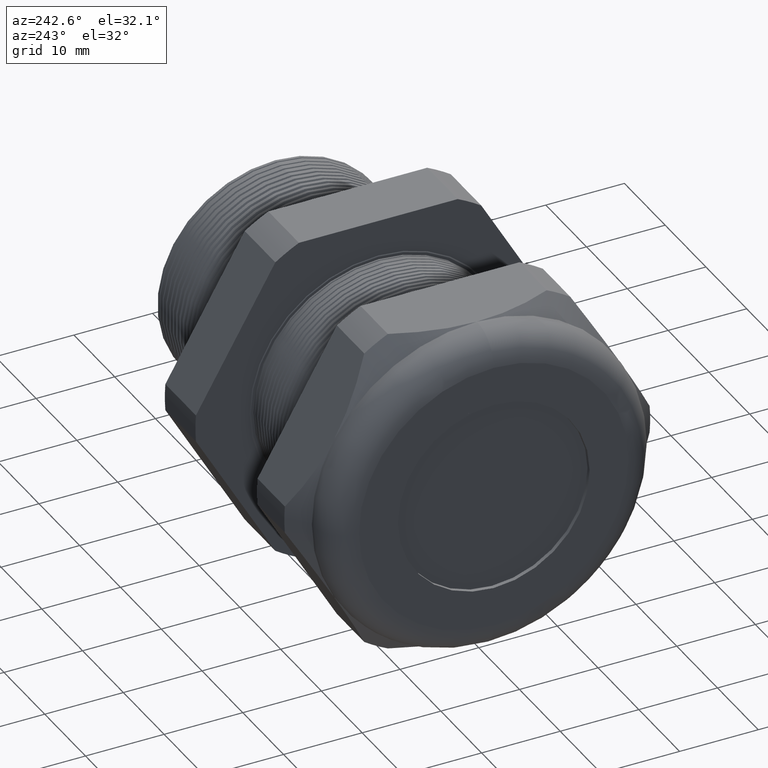
[diagram: clean part render]
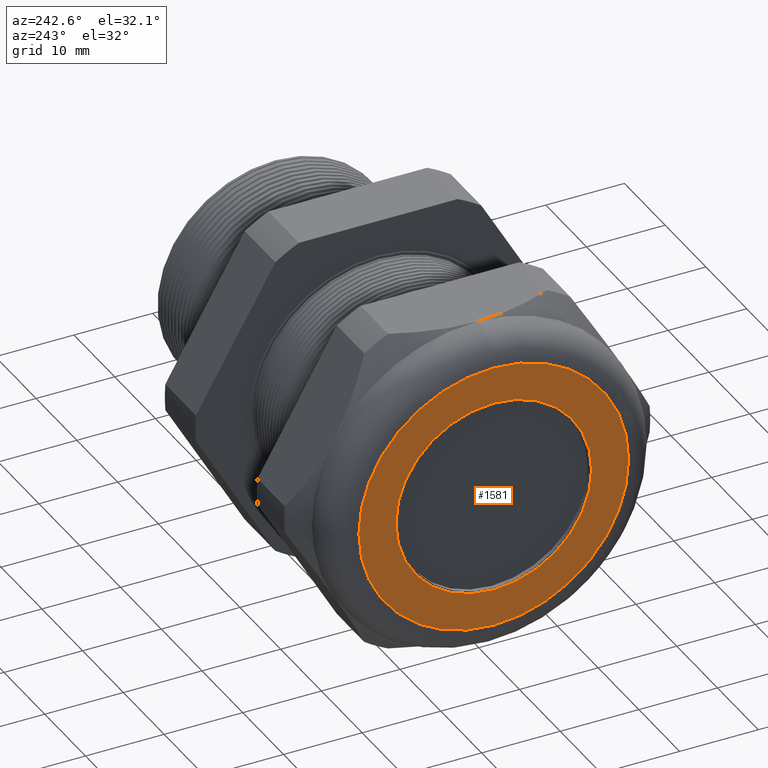
[diagram: same view with one face highlighted and labeled with its STEP entity id]
A machine part, auxiliary view. The second image highlights one B-rep face of the part: STEP entity #1581.
In plain terms, the highlighted planar face has unit normal (-1, 0, 0).
Its self-contained STEP definition (entity closure, byte-faithful):
#76 = VERTEX_POINT ( 'NONE', #2481 ) ;
#77 = VERTEX_POINT ( 'NONE', #2480 ) ;
#81 = VERTEX_POINT ( 'NONE', #2477 ) ;
#83 = VERTEX_POINT ( 'NONE', #2475 ) ;
#91 = EDGE_CURVE ( 'NONE', #77, #76, #2513, .T. ) ;
#102 = EDGE_CURVE ( 'NONE', #83, #81, #2564, .T. ) ;
#1499 = EDGE_LOOP ( 'NONE', ( #1500, #1501 ) ) ;
#1500 = ORIENTED_EDGE ( 'NONE', *, *, #91, .T. ) ;
#1501 = ORIENTED_EDGE ( 'NONE', *, *, #1502, .T. ) ;
#1502 = EDGE_CURVE ( 'NONE', #76, #77, #5383, .T. ) ;
#1503 = EDGE_LOOP ( 'NONE', ( #1504, #1506 ) ) ;
#1504 = ORIENTED_EDGE ( 'NONE', *, *, #1505, .T. ) ;
#1505 = EDGE_CURVE ( 'NONE', #81, #83, #5378, .T. ) ;
#1506 = ORIENTED_EDGE ( 'NONE', *, *, #102, .T. ) ;
#1581 = ADVANCED_FACE ( 'NONE', ( #5514, #5513 ), #5512, .T. ) ;
#2475 = CARTESIAN_POINT ( 'NONE',  ( -1.720000000000000000, 6.000769315822029800E-017, 0.4899999999999999900 ) ) ;
#2477 = CARTESIAN_POINT ( 'NONE',  ( -1.720000000000000000, 0.0000000000000000000, -0.4899999999999999900 ) ) ;
#2480 = CARTESIAN_POINT ( 'NONE',  ( -1.720000000000000000, 0.0000000000000000000, 0.6750000000000000400 ) ) ;
#2481 = CARTESIAN_POINT ( 'NONE',  ( -1.720000000000000000, 9.184850993605148400E-017, -0.6750000000000000400 ) ) ;
#2510 = DIRECTION ( 'NONE',  ( 0.0000000000000000000, 0.0000000000000000000, 1.000000000000000000 ) ) ;
#2511 = DIRECTION ( 'NONE',  ( -1.000000000000000000, 0.0000000000000000000, 0.0000000000000000000 ) ) ;
#2512 = AXIS2_PLACEMENT_3D ( 'NONE', #2521, #2511, #2510 ) ;
#2513 = CIRCLE ( 'NONE', #2512, 0.6750000000000000400 ) ;
#2521 = CARTESIAN_POINT ( 'NONE',  ( -1.720000000000000000, 0.0000000000000000000, 0.0000000000000000000 ) ) ;
#2549 = DIRECTION ( 'NONE',  ( 0.0000000000000000000, 0.0000000000000000000, -1.000000000000000000 ) ) ;
#2550 = DIRECTION ( 'NONE',  ( 1.000000000000000000, 0.0000000000000000000, 0.0000000000000000000 ) ) ;
#2561 = CARTESIAN_POINT ( 'NONE',  ( -1.720000000000000000, 0.0000000000000000000, 0.0000000000000000000 ) ) ;
#2562 = AXIS2_PLACEMENT_3D ( 'NONE', #2561, #2550, #2549 ) ;
#2564 = CIRCLE ( 'NONE', #2562, 0.4899999999999999900 ) ;
#5374 = DIRECTION ( 'NONE',  ( 0.0000000000000000000, 0.0000000000000000000, -1.000000000000000000 ) ) ;
#5375 = DIRECTION ( 'NONE',  ( 1.000000000000000000, 0.0000000000000000000, 0.0000000000000000000 ) ) ;
#5376 = CARTESIAN_POINT ( 'NONE',  ( -1.720000000000000000, 0.0000000000000000000, 0.0000000000000000000 ) ) ;
#5377 = AXIS2_PLACEMENT_3D ( 'NONE', #5376, #5375, #5374 ) ;
#5378 = CIRCLE ( 'NONE', #5377, 0.4899999999999999900 ) ;
#5379 = DIRECTION ( 'NONE',  ( 0.0000000000000000000, 0.0000000000000000000, 1.000000000000000000 ) ) ;
#5380 = DIRECTION ( 'NONE',  ( -1.000000000000000000, 0.0000000000000000000, 0.0000000000000000000 ) ) ;
#5381 = CARTESIAN_POINT ( 'NONE',  ( -1.720000000000000000, 0.0000000000000000000, 0.0000000000000000000 ) ) ;
#5382 = AXIS2_PLACEMENT_3D ( 'NONE', #5381, #5380, #5379 ) ;
#5383 = CIRCLE ( 'NONE', #5382, 0.6750000000000000400 ) ;
#5508 = DIRECTION ( 'NONE',  ( 0.0000000000000000000, 0.0000000000000000000, 1.000000000000000000 ) ) ;
#5509 = DIRECTION ( 'NONE',  ( -1.000000000000000000, 0.0000000000000000000, 0.0000000000000000000 ) ) ;
#5510 = CARTESIAN_POINT ( 'NONE',  ( -1.720000000000000000, 0.8249999999999999600, 0.0000000000000000000 ) ) ;
#5511 = AXIS2_PLACEMENT_3D ( 'NONE', #5510, #5509, #5508 ) ;
#5512 = PLANE ( 'NONE',  #5511 ) ;
#5513 = FACE_BOUND ( 'NONE', #1503, .T. ) ;
#5514 = FACE_OUTER_BOUND ( 'NONE', #1499, .T. ) ;